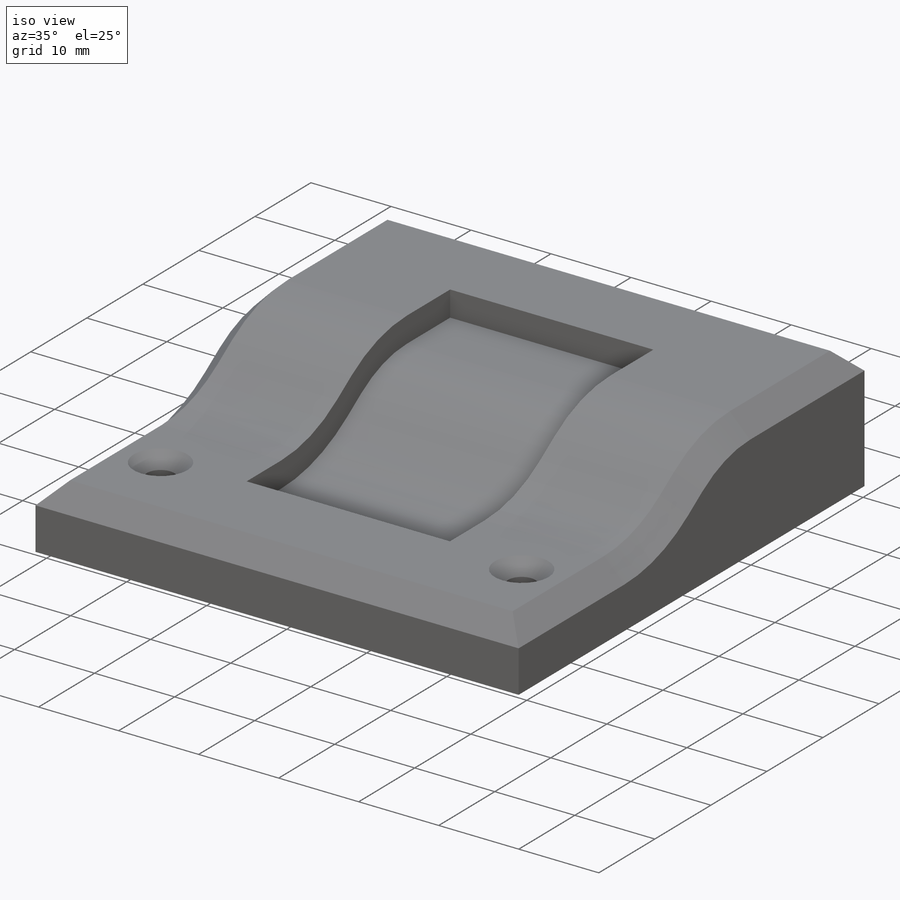
[diagram: iso view]
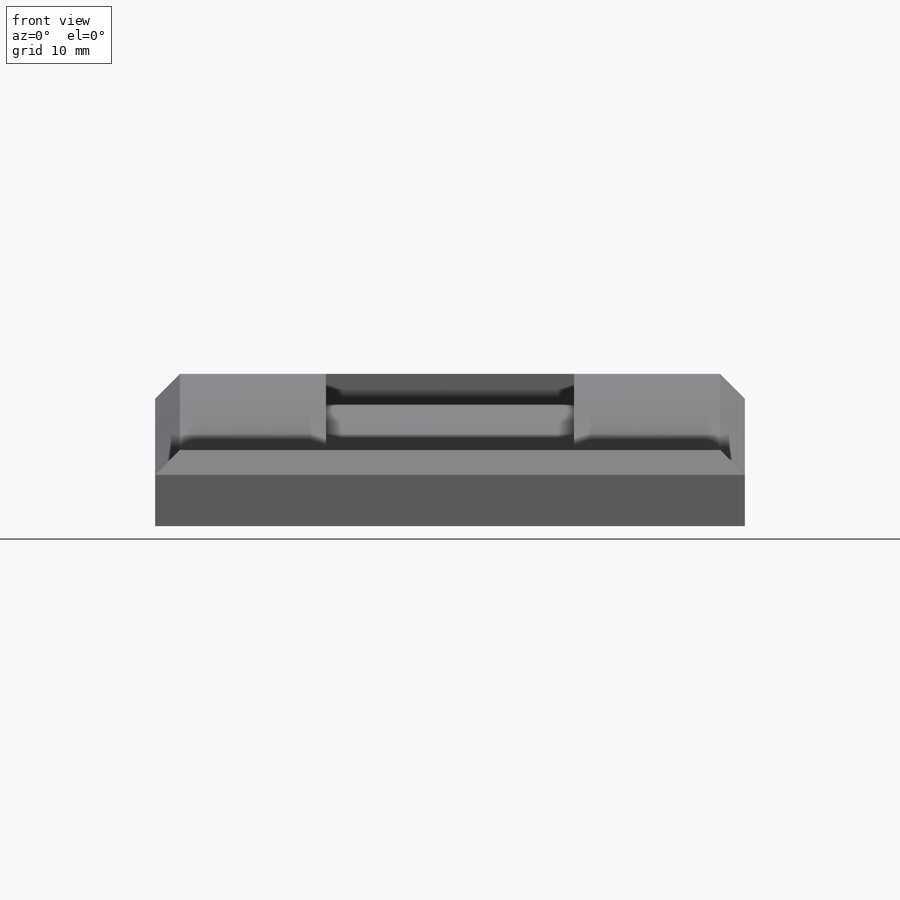
[diagram: front view]
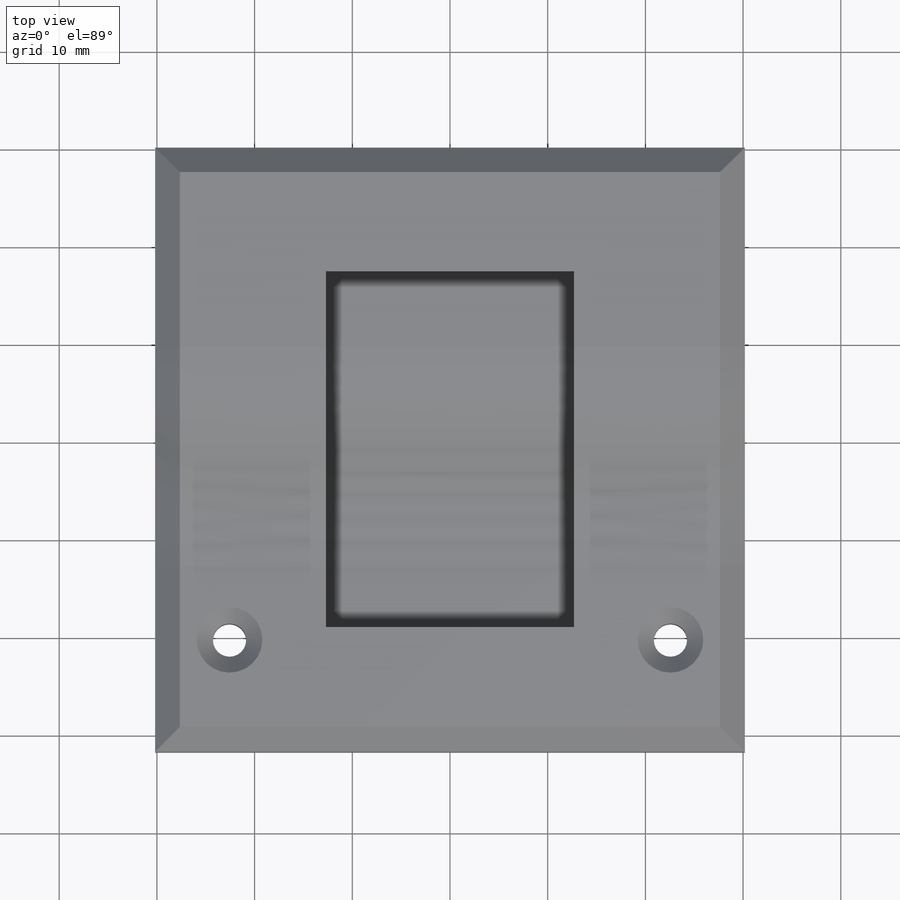
[diagram: top view]
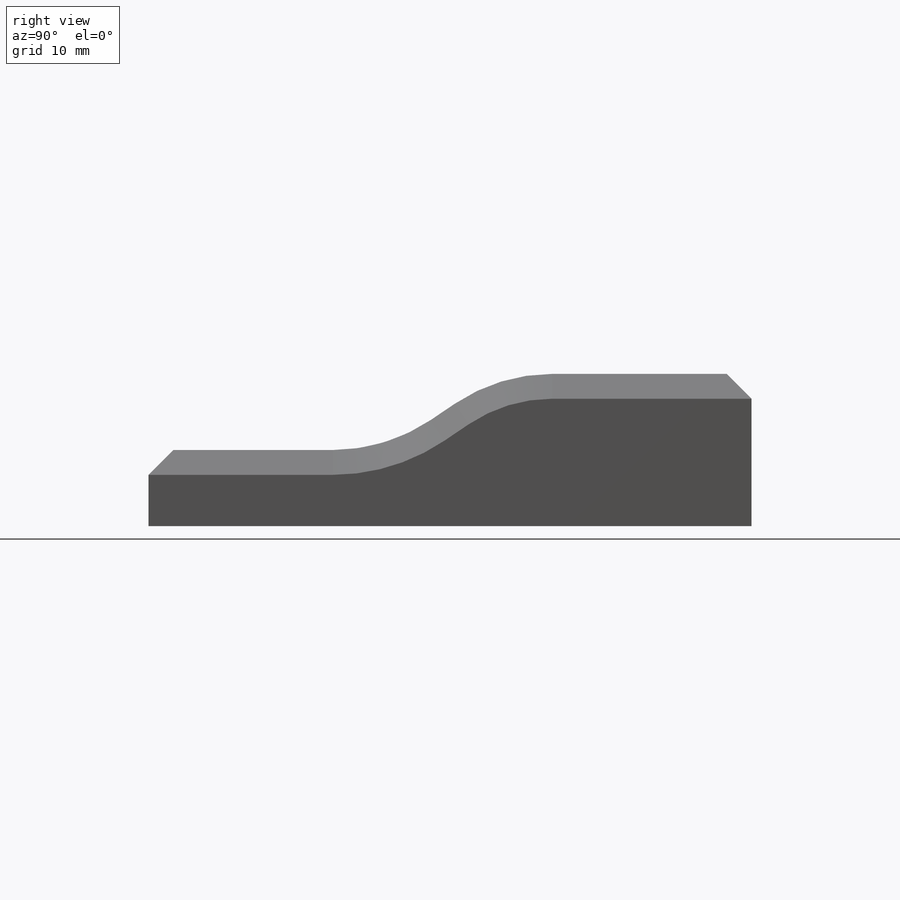
[diagram: right view]
SOLIDWORKS PART (.sldprt)
format: sldprt  version: not decoded by parser v0  size: 279,040 bytes
history: native  units: mm
features: sketch x5, cut_extrude x2, material x1, extrude x1, fillet x1, hole x1, chamfer x1, plane x1 (+11 scaffold rows collapsed)
feature tree (24):
  scaffold x11  (default folders/planes/origin — collapsed)
  material  "Material <not specified>"
  sketch  "Sketch1"
  extrude  "Boss-Extrude1"  Depth=61.722mm
  sketch  "Sketch3"
  cut_extrude  "Cut-Extrude2"  [1 undecoded]
  fillet  "Fillet1"  Radius=17.78mm
  hole  "CSK for M3 SFHCS1"  Diameter=3.4mm Depth=7.790606mm
  sketch  "Sketch5"  dims[D1=7.62mm D2=7.62mm D3=11.43mm]
  sketch  "Sketch6"  dims[hole-wizard template sketch: 55 standard entries collapsed; hole parameters kept: c17.Thru Hole Depth=~7.790606mm c17.Near C'Sink Dia.=6.72mm c17.D4=~3.666174mm c17.Near C'Sink Angle=90.0deg]
  chamfer  "Chamfer1"  Distance=2.54mm Angle=45deg
  plane  "Plane1"  Offset=15.931448mm
  sketch  "Sketch8"  dims[c1.D1=12.7mm c1.D2=12.7mm c1.D3=25.4mm c2.D1=0.0mm]
  cut_extrude  "Cut-Extrude4"  Depth=3.175mm
decode coverage: 8 of 11 modeling features carry decoded parameters
note: ~ marks probable driven/reference dimensions
note: 1 parameter value undecoded
note: suppression state not decoded; provenance and decode notes live in map.json
